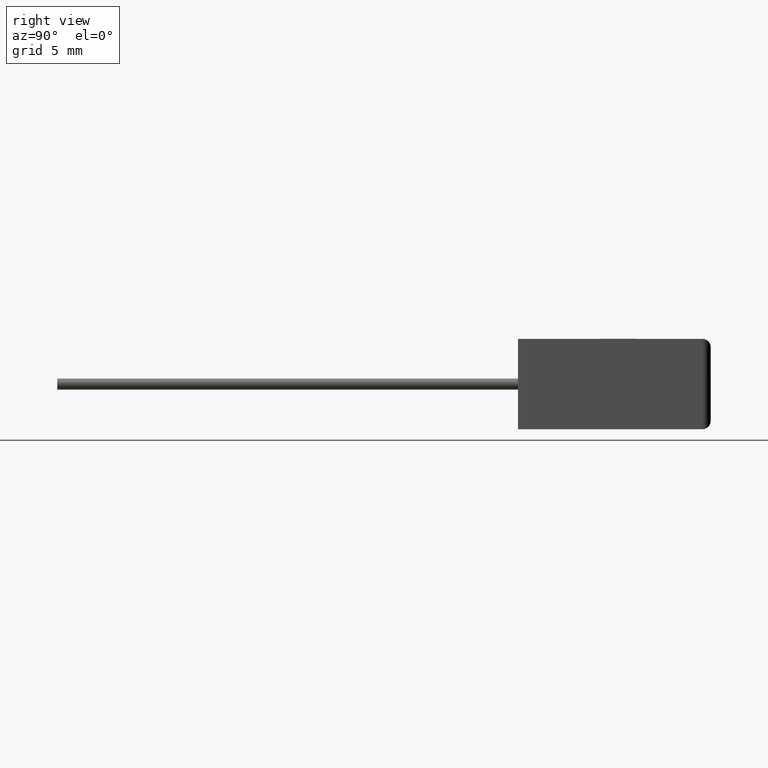
[diagram: clean part render]
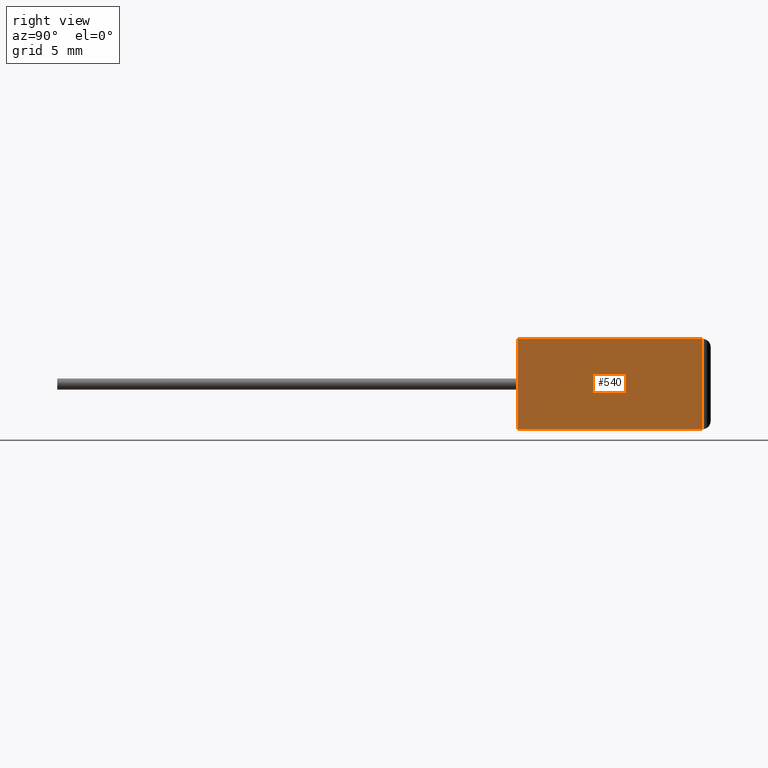
[diagram: same view with one face highlighted and labeled with its STEP entity id]
A machine part, right view. The second image highlights one B-rep face of the part: STEP entity #540.
In plain terms, the highlighted planar face has unit normal (-1, 0, 0).
Its self-contained STEP definition (entity closure, byte-faithful):
#25 = CARTESIAN_POINT ( 'NONE',  ( 18.50000000000000000, 10.80000000000000071, 0.000000000000000000 ) ) ;
#50 = PLANE ( 'NONE',  #1200 ) ;
#107 = LINE ( 'NONE', #1316, #1622 ) ;
#189 = CARTESIAN_POINT ( 'NONE',  ( 18.50000000000000000, 0.000000000000000000, 0.000000000000000000 ) ) ;
#352 = DIRECTION ( 'NONE',  ( -1.000000000000000000, 0.000000000000000000, 0.000000000000000000 ) ) ;
#422 = VECTOR ( 'NONE', #1140, 1000.000000000000000 ) ;
#490 = CARTESIAN_POINT ( 'NONE',  ( 18.50000000000000000, 0.000000000000000000, 0.000000000000000000 ) ) ;
#515 = CARTESIAN_POINT ( 'NONE',  ( 18.50000000000000000, 0.000000000000000000, 5.299999999999999822 ) ) ;
#540 = ADVANCED_FACE ( 'NONE', ( #1995 ), #50, .F. ) ;
#716 = CARTESIAN_POINT ( 'NONE',  ( 18.50000000000000000, 0.000000000000000000, 5.299999999999999822 ) ) ;
#1080 = EDGE_CURVE ( 'NONE', #1737, #1969, #107, .T. ) ;
#1135 = VERTEX_POINT ( 'NONE', #716 ) ;
#1140 = DIRECTION ( 'NONE',  ( 0.000000000000000000, 1.000000000000000000, 0.000000000000000000 ) ) ;
#1200 = AXIS2_PLACEMENT_3D ( 'NONE', #1758, #352, #2885 ) ;
#1316 = CARTESIAN_POINT ( 'NONE',  ( 18.50000000000000000, 10.80000000000000071, 5.299999999999999822 ) ) ;
#1511 = VECTOR ( 'NONE', #2906, 1000.000000000000000 ) ;
#1596 = LINE ( 'NONE', #189, #422 ) ;
#1622 = VECTOR ( 'NONE', #2253, 1000.000000000000000 ) ;
#1703 = EDGE_LOOP ( 'NONE', ( #2798, #1726, #2767, #2423 ) ) ;
#1726 = ORIENTED_EDGE ( 'NONE', *, *, #1080, .T. ) ;
#1737 = VERTEX_POINT ( 'NONE', #25 ) ;
#1740 = CARTESIAN_POINT ( 'NONE',  ( 18.50000000000000000, 10.80000000000000071, 5.299999999999999822 ) ) ;
#1758 = CARTESIAN_POINT ( 'NONE',  ( 18.50000000000000000, 0.000000000000000000, 5.299999999999999822 ) ) ;
#1828 = VECTOR ( 'NONE', #2398, 1000.000000000000000 ) ;
#1969 = VERTEX_POINT ( 'NONE', #1740 ) ;
#1974 = CARTESIAN_POINT ( 'NONE',  ( 18.50000000000000000, 0.000000000000000000, 5.299999999999999822 ) ) ;
#1995 = FACE_OUTER_BOUND ( 'NONE', #1703, .T. ) ;
#2162 = LINE ( 'NONE', #515, #1828 ) ;
#2253 = DIRECTION ( 'NONE',  ( -0.000000000000000000, -0.000000000000000000, 1.000000000000000000 ) ) ;
#2283 = EDGE_CURVE ( 'NONE', #1135, #2390, #2162, .T. ) ;
#2373 = LINE ( 'NONE', #1974, #1511 ) ;
#2390 = VERTEX_POINT ( 'NONE', #490 ) ;
#2398 = DIRECTION ( 'NONE',  ( -0.000000000000000000, -0.000000000000000000, -1.000000000000000000 ) ) ;
#2400 = EDGE_CURVE ( 'NONE', #1135, #1969, #2373, .T. ) ;
#2423 = ORIENTED_EDGE ( 'NONE', *, *, #2283, .T. ) ;
#2758 = EDGE_CURVE ( 'NONE', #2390, #1737, #1596, .T. ) ;
#2767 = ORIENTED_EDGE ( 'NONE', *, *, #2400, .F. ) ;
#2798 = ORIENTED_EDGE ( 'NONE', *, *, #2758, .T. ) ;
#2885 = DIRECTION ( 'NONE',  ( 0.000000000000000000, 0.000000000000000000, 1.000000000000000000 ) ) ;
#2906 = DIRECTION ( 'NONE',  ( 0.000000000000000000, 1.000000000000000000, 0.000000000000000000 ) ) ;